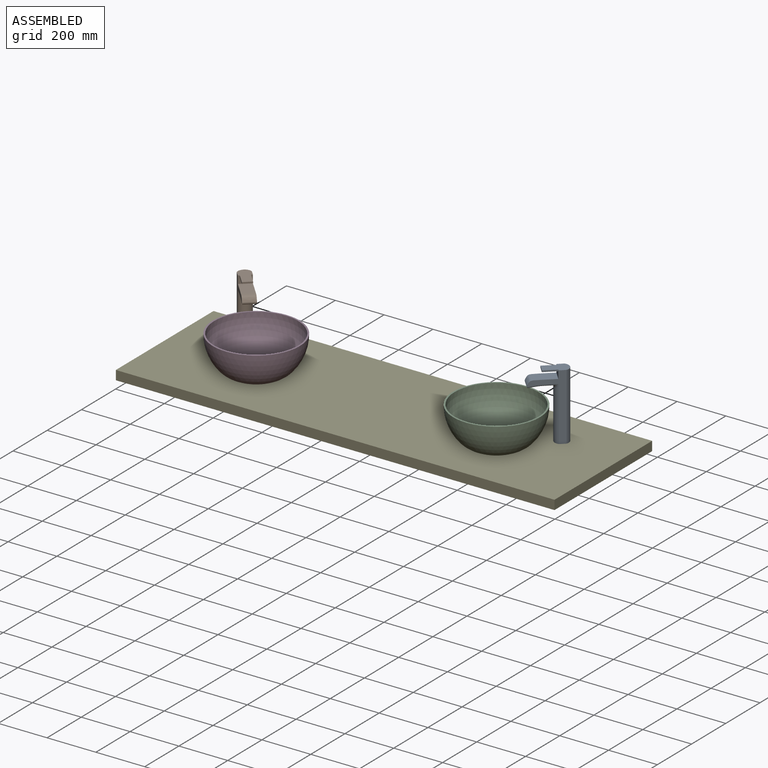
[diagram: assembled view]
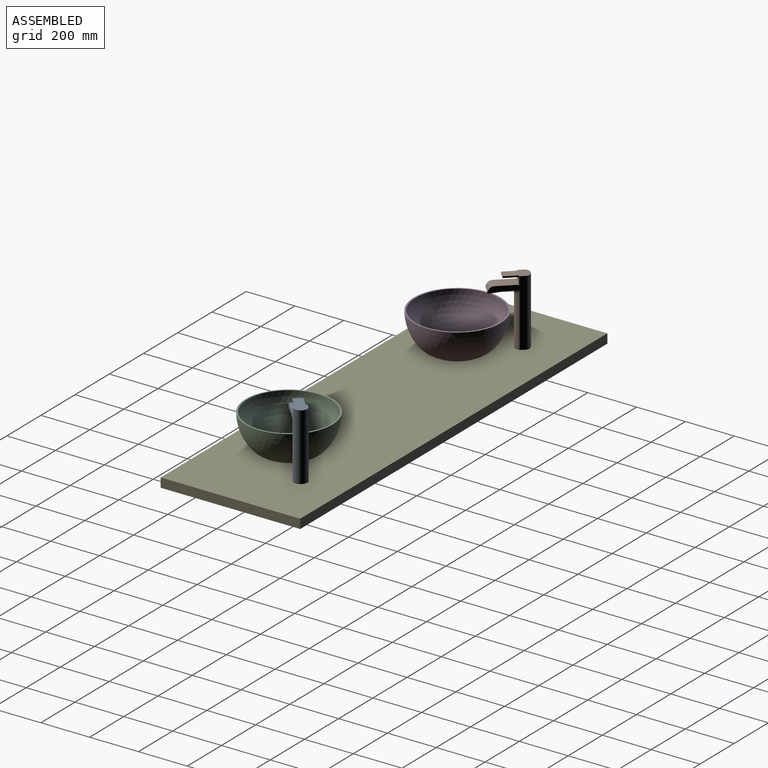
[diagram: assembled view, second angle]
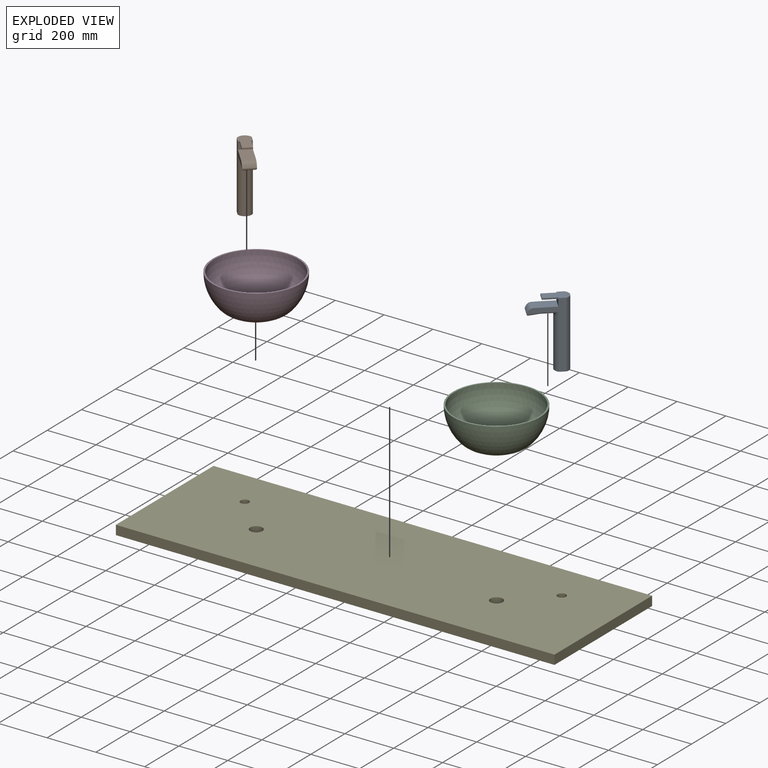
[diagram: exploded view]
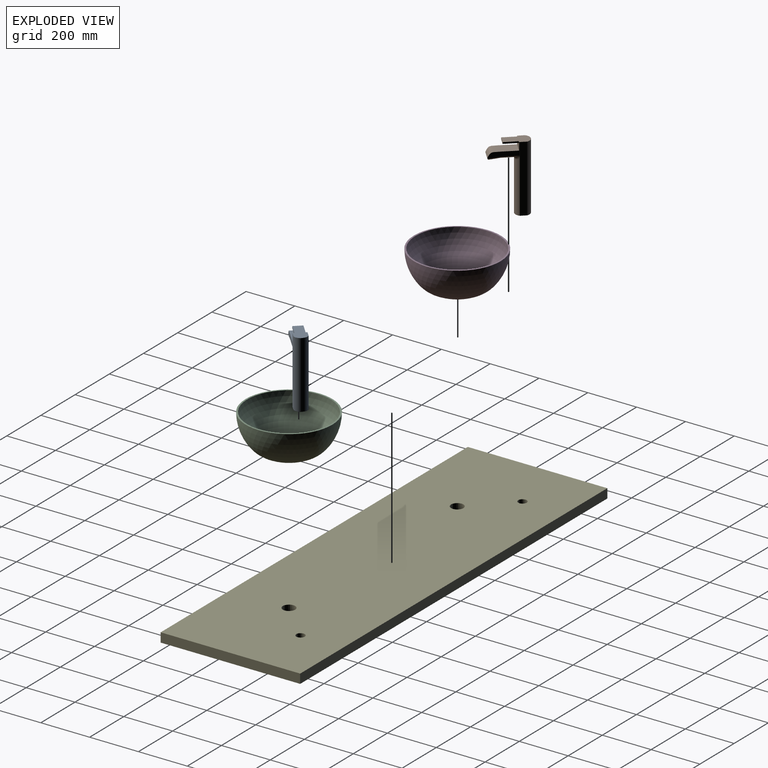
[diagram: exploded view, second angle]
ASSEMBLY  parts=5 mates=4
PART A: 32 faces, bbox 51.5x151.3x273.1 mm
  f0: plane 54.92x38.1mm, normal (0,0,-1), area 2092.4mm2, adj f27,f29,f30,f31
  f1: plane 273.05x25.4mm, normal (-1,0,0), area 6935.5mm2, adj f2,f4,f5,f24,f25,f26
  f2: cylinder r=28.57mm len=273.05mm, axis (0,0,-1), area 17325.1mm2, adj f1,f3,f5,f26
  f3: plane 273.05x25.4mm, normal (1,0,0), area 6935.5mm2, adj f2,f4,f5,f19,f20,f26
  f4: cylinder r=28.57mm len=216.85mm, axis (0,0,-1), area 13061.4mm2, adj f1,f3,f5,f21,f22,f23
  f5: plane 57.15x51.2mm, normal (0,0,-1), area 2463.3mm2, adj f1,f2,f3,f4
  f6: plane 107.78x24.24mm, normal (1,0,0), area 1884.3mm2, adj f10,f11,f12,f13,f14,f19,f28
  f7: plane 107.78x24.24mm, normal (-1,0,0), area 1884.3mm2, adj f10,f14,f16,f17,f18,f25,f28
  f8: plane 38.52x35.56mm, normal (0,0,-1), area 1273.4mm2, adj f11,f15,f18,f22
  f9: plane 37.03x35.56mm, normal (0,-0.11,-0.99), area 1325.1mm2, adj f12,f14,f15,f16
  f10: extruded ~50.8x45.19mm, area 2735.9mm2, adj f6,f7,f14,f28
  f11: cylinder r=7.62mm len=60.84mm, axis (0,-1,0), area 597.7mm2, adj f6,f8,f13,f20,f21
  f12: cylinder r=7.62mm len=45.46mm, axis (0,-0.99,0.11), area 504.1mm2, adj f6,f9,f13,f14
  f13: torus R=15.24mm, axis (1,0,0), area 14mm2, adj f6,f11,f12,f15
  f14: cylinder r=7.62mm len=50.8mm, axis (-1,0,0), area 757.2mm2, adj f6,f7,f9,f10,f12,f16
  f15: cylinder r=7.62mm len=35.56mm, axis (1,0,0), area 30.5mm2, adj f8,f9,f13,f17
  f16: cylinder r=7.62mm len=45.46mm, axis (0,0.99,-0.11), area 504.1mm2, adj f7,f9,f14,f17
  f17: torus R=15.24mm, axis (1,0,0), area 14mm2, adj f7,f15,f16,f18
  f18: cylinder r=7.62mm len=60.84mm, axis (0,1,0), area 597.7mm2, adj f7,f8,f17,f23,f24
  f19: cylinder r=12.7mm len=49.53mm, axis (0,0,-1), area 111.1mm2, adj f3,f6,f20,f26,f27
  f20: bspline ~8.29x6.34mm, area 20.7mm2, adj f3,f11,f19,f21
  f21: bspline ~25.59x17.93mm, area 273.7mm2, adj f4,f11,f20,f22
  f22: torus R=41.27mm, axis (0,0,1), area 589.7mm2, adj f4,f8,f21,f23
  f23: bspline ~25.9x18.19mm, area 273.7mm2, adj f4,f18,f22,f24
  f24: bspline ~8.29x6.34mm, area 20.7mm2, adj f1,f18,f23,f25
  f25: cylinder r=12.7mm len=49.53mm, axis (0,0,-1), area 111.1mm2, adj f1,f7,f24,f26,f27
  f26: plane 98.43x51.2mm, normal (0,0,1), area 4087.9mm2, adj f1,f2,f3,f19,f25,f27,f29,f30
  f27: plane 50.8x31.75mm, normal (0,1,0), area 1371mm2, adj f0,f19,f25,f26,f28,f29,f31
  f28: plane 61.27x50.8mm, normal (0,0,1), area 3112.4mm2, adj f6,f7,f10,f27
  f29: plane 54.92x6.35mm, normal (-1,0,0), area 348.7mm2, adj f0,f26,f27,f30
  f30: plane 38.1x6.35mm, normal (0,1,0), area 241.9mm2, adj f0,f26,f29,f31
  f31: plane 54.92x6.35mm, normal (1,0,0), area 348.7mm2, adj f0,f26,f27,f30
PART B: same geometry as A
PART C: 8 faces, bbox 355.6x355.6x152.4 mm
  f0: sphere r=171.45mm, area 123129.9mm2, adj f1,f6
  f1: torus R=56.8mm, axis (0,0,-1), area 47590.3mm2, adj f0,f2
  f2: plane 113.59x113.59mm, normal (0,0,1), area 8107.3mm2, adj f1,f7
  f3: plane 113.59x113.59mm, normal (0,0,-1), area 8107.3mm2, adj f4,f7
  f4: torus R=56.8mm, axis (0,0,-1), area 52114.2mm2, adj f3,f5
  f5: sphere r=177.8mm, area 132419.6mm2, adj f4,f6
  f6: plane 355.6x355.6mm, normal (0,0,1), area 6967.2mm2, adj f0,f5
  f7: cylinder r=25.4mm len=50.8mm, axis (0,0,-1), area 1013.4mm2, adj f2,f3
PART D: same geometry as C
PART E: 10 faces, bbox 1797.1x571.5x38.1 mm
  f0: plane 571.5x38.1mm, normal (-1,0,0), area 21774.1mm2, adj f1,f3,f4,f5
  f1: plane 1797.05x38.1mm, normal (0,-1,0), area 68467.6mm2, adj f0,f2,f4,f5
  f2: plane 571.5x38.1mm, normal (1,0,0), area 21774.1mm2, adj f1,f3,f4,f5
  f3: plane 1797.05x38.1mm, normal (0,1,0), area 68467.6mm2, adj f0,f2,f4,f5
  f4: plane 1797.05x571.5mm, normal (0,0,1), area 1021044.4mm2, adj f0,f1,f2,f3,f6,f7,f8,f9
  f5: plane 1797.05x571.5mm, normal (0,0,-1), area 1021044.4mm2, adj f0,f1,f2,f3,f6,f7,f8,f9
  f6: cylinder r=25.4mm len=50.8mm, axis (0,0,1), area 6080.5mm2, adj f4,f5
  f7: cylinder r=25.4mm len=50.8mm, axis (0,0,1), area 6080.5mm2, adj f4,f5
  f8: cylinder r=17.46mm len=38.1mm, axis (0,0,1), area 4180.3mm2, adj f4,f5
  f9: cylinder r=17.46mm len=38.1mm, axis (0,0,1), area 4180.3mm2, adj f4,f5
PLACE A rot(axis=(0,0,1),132.5deg) t=(649.28,398.45,38.1)mm
PLACE B rot(axis=(0,0,-1),137.5deg) t=(-649.28,398.45,38.1)mm
PLACE C t=(492.13,241.3,38.1)mm
PLACE D t=(-492.13,241.3,38.1)mm
PLACE E at identity fixed
MATE revolute E.f6 <-> D.f7  axis (0,0,1) through (-492.13,241.3,38.1)mm
MATE revolute E.f9 <-> A.f2  axis (0,0,1) through (649.28,398.45,38.1)mm
MATE revolute C.f7 <-> E.f7  axis (0,0,-1) through (492.13,241.3,38.1)mm
MATE revolute E.f8 <-> B.f4  axis (0,0,1) through (-649.28,398.45,38.1)mm
